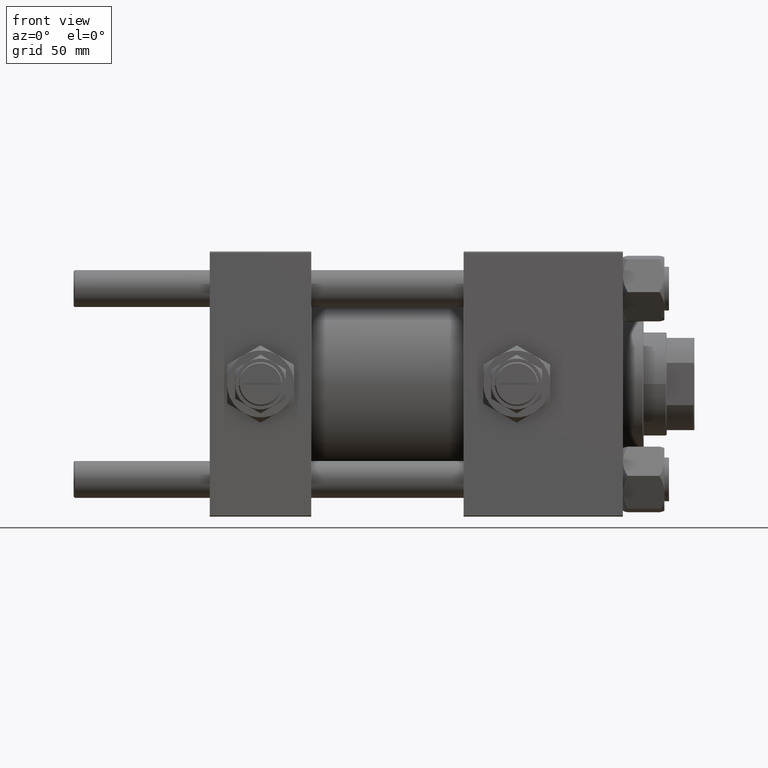
[diagram: clean part render]
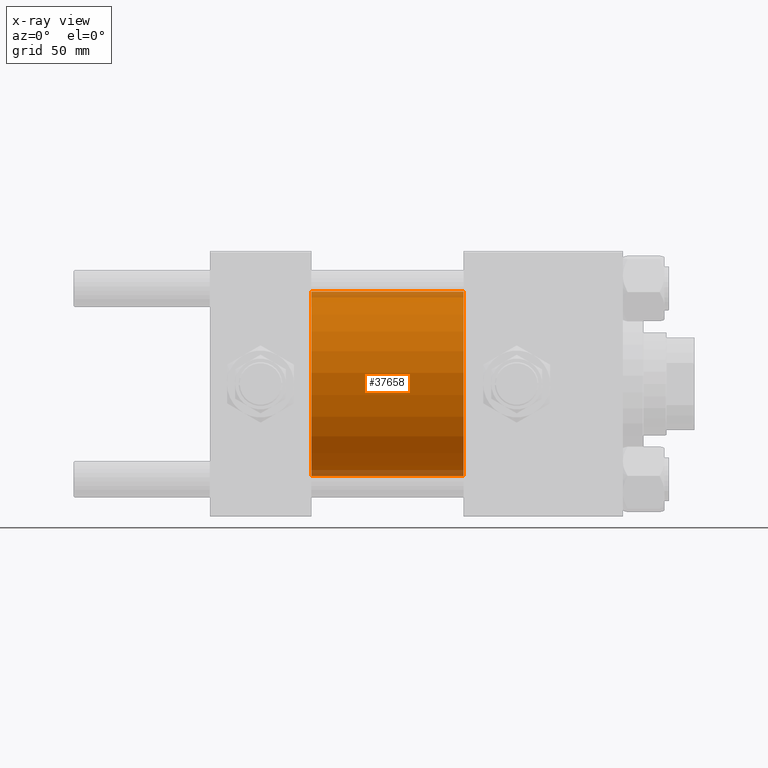
[diagram: x-ray — body ghosted, one internal face saturated and labeled with its STEP entity id]
A machine part, front view, then the same camera in x-ray: the body is ghosted and one INTERNAL B-rep face — a face not visible from any outside direction — is saturated and labeled: STEP entity #37658.
In plain terms, the highlighted cylindrical surface (partial cylindrical patch) has radius 40 mm, axis along (-1, -0, -0).
Its self-contained STEP definition (entity closure, byte-faithful):
#223 = CARTESIAN_POINT ( 'NONE',  ( 44.00000000000000000, 0.000000000000000000, 40.00000000000000000 ) ) ;
#353 = VERTEX_POINT ( 'NONE', #223 ) ;
#2633 = AXIS2_PLACEMENT_3D ( 'NONE', #13404, #18418, #5192 ) ;
#4075 = ORIENTED_EDGE ( 'NONE', *, *, #5099, .T. ) ;
#4719 = DIRECTION ( 'NONE',  ( -1.000000000000000000, -0.000000000000000000, -0.000000000000000000 ) ) ;
#5099 = EDGE_CURVE ( 'NONE', #43502, #21902, #33925, .T. ) ;
#5192 = DIRECTION ( 'NONE',  ( 0.000000000000000000, 0.000000000000000000, -1.000000000000000000 ) ) ;
#5928 = ORIENTED_EDGE ( 'NONE', *, *, #23705, .T. ) ;
#6676 = EDGE_LOOP ( 'NONE', ( #4075, #5928, #24428, #8600 ) ) ;
#7837 = LINE ( 'NONE', #48148, #14780 ) ;
#8600 = ORIENTED_EDGE ( 'NONE', *, *, #51283, .F. ) ;
#13404 = CARTESIAN_POINT ( 'NONE',  ( 110.0000000000000000, 0.000000000000000000, 0.000000000000000000 ) ) ;
#14780 = VECTOR ( 'NONE', #47884, 1000.000000000000000 ) ;
#16581 = EDGE_CURVE ( 'NONE', #353, #42644, #51997, .T. ) ;
#18418 = DIRECTION ( 'NONE',  ( 1.000000000000000000, 0.000000000000000000, 0.000000000000000000 ) ) ;
#19007 = CARTESIAN_POINT ( 'NONE',  ( 110.0000000000000000, 4.898587196589413026E-15, -40.00000000000000000 ) ) ;
#20115 = AXIS2_PLACEMENT_3D ( 'NONE', #24961, #24438, #45646 ) ;
#21902 = VERTEX_POINT ( 'NONE', #19007 ) ;
#23705 = EDGE_CURVE ( 'NONE', #21902, #42644, #24854, .T. ) ;
#24428 = ORIENTED_EDGE ( 'NONE', *, *, #16581, .F. ) ;
#24438 = DIRECTION ( 'NONE',  ( -1.000000000000000000, -0.000000000000000000, -0.000000000000000000 ) ) ;
#24854 = LINE ( 'NONE', #33330, #51894 ) ;
#24961 = CARTESIAN_POINT ( 'NONE',  ( 110.0000000000000000, 0.000000000000000000, 0.000000000000000000 ) ) ;
#33330 = CARTESIAN_POINT ( 'NONE',  ( 110.0000000000000000, 4.898587196589413026E-15, -40.00000000000000000 ) ) ;
#33821 = CARTESIAN_POINT ( 'NONE',  ( 110.0000000000000000, 0.000000000000000000, 40.00000000000000000 ) ) ;
#33925 = CIRCLE ( 'NONE', #2633, 40.00000000000000000 ) ;
#37658 = ADVANCED_FACE ( 'NONE', ( #49095 ), #40888, .F. ) ;
#40888 = CYLINDRICAL_SURFACE ( 'NONE', #20115, 40.00000000000000000 ) ;
#42644 = VERTEX_POINT ( 'NONE', #47657 ) ;
#42827 = DIRECTION ( 'NONE',  ( 1.000000000000000000, 0.000000000000000000, 0.000000000000000000 ) ) ;
#43502 = VERTEX_POINT ( 'NONE', #33821 ) ;
#45646 = DIRECTION ( 'NONE',  ( 0.000000000000000000, 0.000000000000000000, 1.000000000000000000 ) ) ;
#47657 = CARTESIAN_POINT ( 'NONE',  ( 44.00000000000000000, 4.898587196589413026E-15, -40.00000000000000000 ) ) ;
#47884 = DIRECTION ( 'NONE',  ( -1.000000000000000000, -0.000000000000000000, -0.000000000000000000 ) ) ;
#48148 = CARTESIAN_POINT ( 'NONE',  ( 110.0000000000000000, 0.000000000000000000, 40.00000000000000000 ) ) ;
#48650 = AXIS2_PLACEMENT_3D ( 'NONE', #51284, #42827, #51019 ) ;
#49095 = FACE_OUTER_BOUND ( 'NONE', #6676, .T. ) ;
#51019 = DIRECTION ( 'NONE',  ( 0.000000000000000000, 0.000000000000000000, -1.000000000000000000 ) ) ;
#51283 = EDGE_CURVE ( 'NONE', #43502, #353, #7837, .T. ) ;
#51284 = CARTESIAN_POINT ( 'NONE',  ( 44.00000000000000000, 0.000000000000000000, 0.000000000000000000 ) ) ;
#51894 = VECTOR ( 'NONE', #4719, 1000.000000000000000 ) ;
#51997 = CIRCLE ( 'NONE', #48650, 40.00000000000000000 ) ;